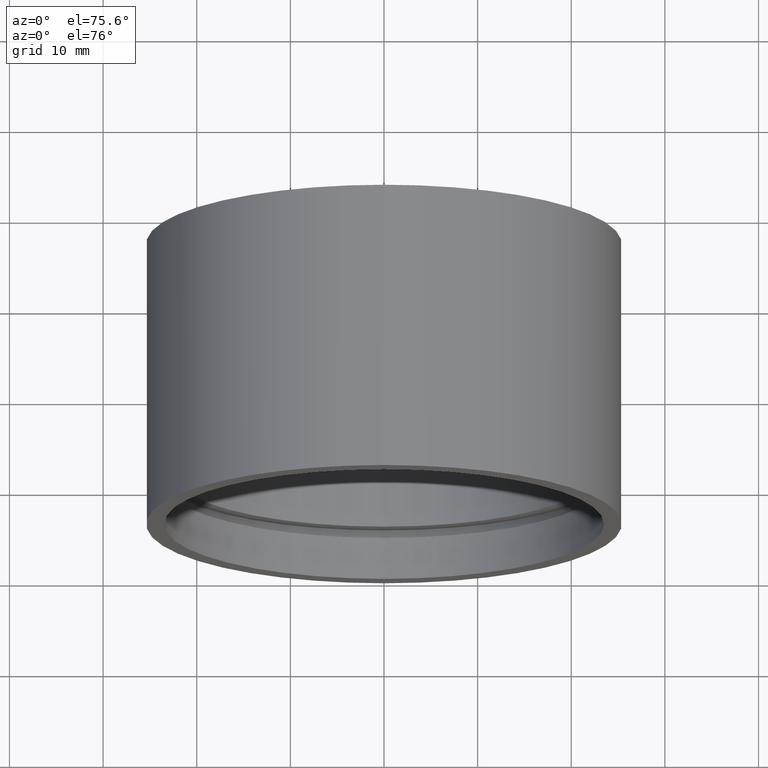
[diagram: clean part render]
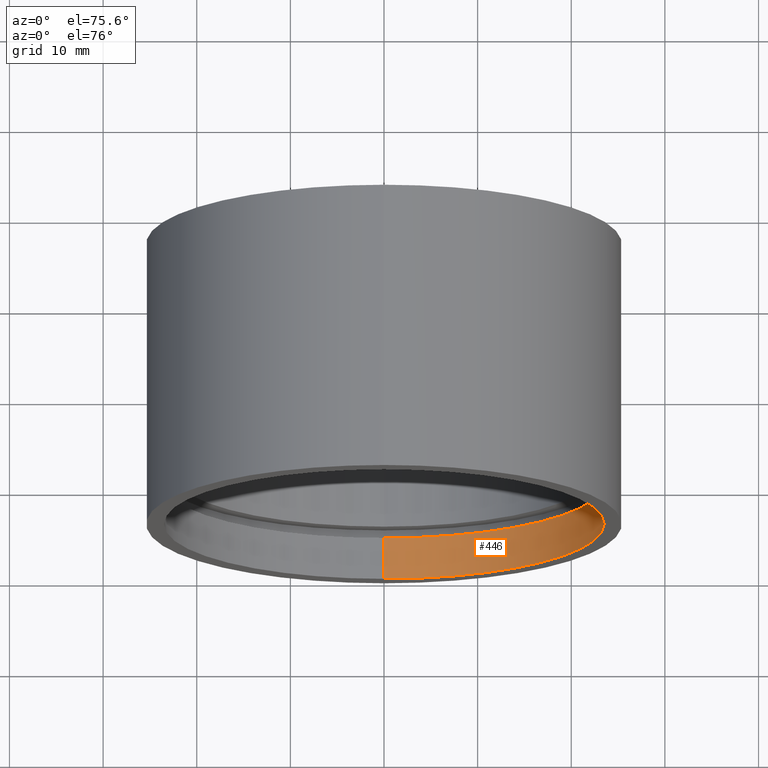
[diagram: same view with one face highlighted and labeled with its STEP entity id]
A machine part, auxiliary view. The second image highlights one B-rep face of the part: STEP entity #446.
In plain terms, the highlighted cylindrical surface (partial cylindrical patch) has radius 23.5 mm, axis along (-0, 1, -0).
Its self-contained STEP definition (entity closure, byte-faithful):
#6 = DIRECTION ( 'NONE',  ( 0.0000000000000000000, 0.0000000000000000000, 1.000000000000000000 ) ) ;
#13 = CYLINDRICAL_SURFACE ( 'NONE', #459, 23.50000000000002100 ) ;
#30 = VECTOR ( 'NONE', #577, 1000.000000000000000 ) ;
#33 = VERTEX_POINT ( 'NONE', #37 ) ;
#37 = CARTESIAN_POINT ( 'NONE',  ( 0.0000000000000000000, 4.499999999999976000, 23.50000000000002100 ) ) ;
#72 = EDGE_LOOP ( 'NONE', ( #170, #151, #557, #582 ) ) ;
#101 = DIRECTION ( 'NONE',  ( -0.0000000000000000000, 1.000000000000000000, -0.0000000000000000000 ) ) ;
#103 = FACE_OUTER_BOUND ( 'NONE', #72, .T. ) ;
#151 = ORIENTED_EDGE ( 'NONE', *, *, #463, .F. ) ;
#170 = ORIENTED_EDGE ( 'NONE', *, *, #336, .F. ) ;
#200 = CARTESIAN_POINT ( 'NONE',  ( 0.0000000000000000000, -2.775557561562891400E-014, 23.50000000000002100 ) ) ;
#202 = EDGE_CURVE ( 'NONE', #321, #33, #256, .T. ) ;
#224 = AXIS2_PLACEMENT_3D ( 'NONE', #444, #101, #6 ) ;
#242 = CARTESIAN_POINT ( 'NONE',  ( 2.877919977996282700E-015, 161.3761669434274500, -23.50000000000002100 ) ) ;
#256 = LINE ( 'NONE', #339, #30 ) ;
#257 = CARTESIAN_POINT ( 'NONE',  ( 2.877919977996282700E-015, 4.499999999999976000, -23.50000000000002100 ) ) ;
#263 = DIRECTION ( 'NONE',  ( -0.0000000000000000000, 1.000000000000000000, -0.0000000000000000000 ) ) ;
#264 = CIRCLE ( 'NONE', #224, 23.50000000000002100 ) ;
#274 = VECTOR ( 'NONE', #297, 1000.000000000000000 ) ;
#297 = DIRECTION ( 'NONE',  ( -0.0000000000000000000, 1.000000000000000000, -0.0000000000000000000 ) ) ;
#312 = DIRECTION ( 'NONE',  ( 0.0000000000000000000, 0.0000000000000000000, 1.000000000000000000 ) ) ;
#321 = VERTEX_POINT ( 'NONE', #200 ) ;
#336 = EDGE_CURVE ( 'NONE', #489, #504, #607, .T. ) ;
#337 = AXIS2_PLACEMENT_3D ( 'NONE', #541, #355, #312 ) ;
#339 = CARTESIAN_POINT ( 'NONE',  ( 0.0000000000000000000, 161.3761669434274500, 23.50000000000002100 ) ) ;
#355 = DIRECTION ( 'NONE',  ( -0.0000000000000000000, 1.000000000000000000, -0.0000000000000000000 ) ) ;
#401 = CIRCLE ( 'NONE', #337, 23.50000000000002100 ) ;
#439 = CARTESIAN_POINT ( 'NONE',  ( 2.877919977996282700E-015, -2.775557561562891400E-014, -23.50000000000002100 ) ) ;
#444 = CARTESIAN_POINT ( 'NONE',  ( 0.0000000000000000000, 4.499999999999976000, 0.0000000000000000000 ) ) ;
#446 = ADVANCED_FACE ( 'NONE', ( #103 ), #13, .F. ) ;
#459 = AXIS2_PLACEMENT_3D ( 'NONE', #624, #263, #585 ) ;
#463 = EDGE_CURVE ( 'NONE', #321, #489, #401, .T. ) ;
#484 = EDGE_CURVE ( 'NONE', #33, #504, #264, .T. ) ;
#489 = VERTEX_POINT ( 'NONE', #439 ) ;
#504 = VERTEX_POINT ( 'NONE', #257 ) ;
#541 = CARTESIAN_POINT ( 'NONE',  ( 0.0000000000000000000, -2.775557561562891400E-014, 0.0000000000000000000 ) ) ;
#557 = ORIENTED_EDGE ( 'NONE', *, *, #202, .T. ) ;
#577 = DIRECTION ( 'NONE',  ( -0.0000000000000000000, 1.000000000000000000, -0.0000000000000000000 ) ) ;
#582 = ORIENTED_EDGE ( 'NONE', *, *, #484, .T. ) ;
#585 = DIRECTION ( 'NONE',  ( 0.0000000000000000000, 0.0000000000000000000, 1.000000000000000000 ) ) ;
#607 = LINE ( 'NONE', #242, #274 ) ;
#624 = CARTESIAN_POINT ( 'NONE',  ( 0.0000000000000000000, 161.3761669434274500, 0.0000000000000000000 ) ) ;